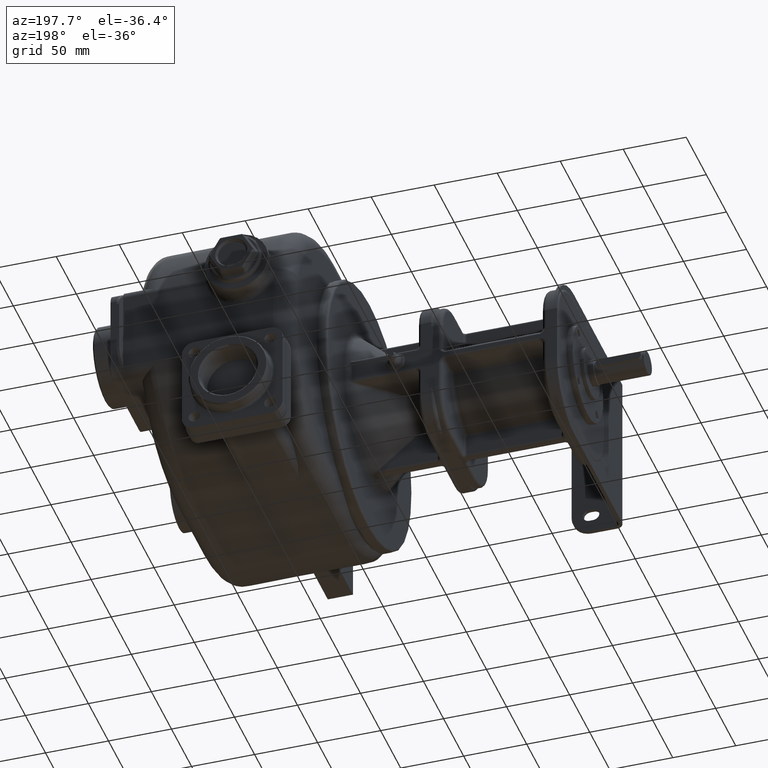
[diagram: clean part render]
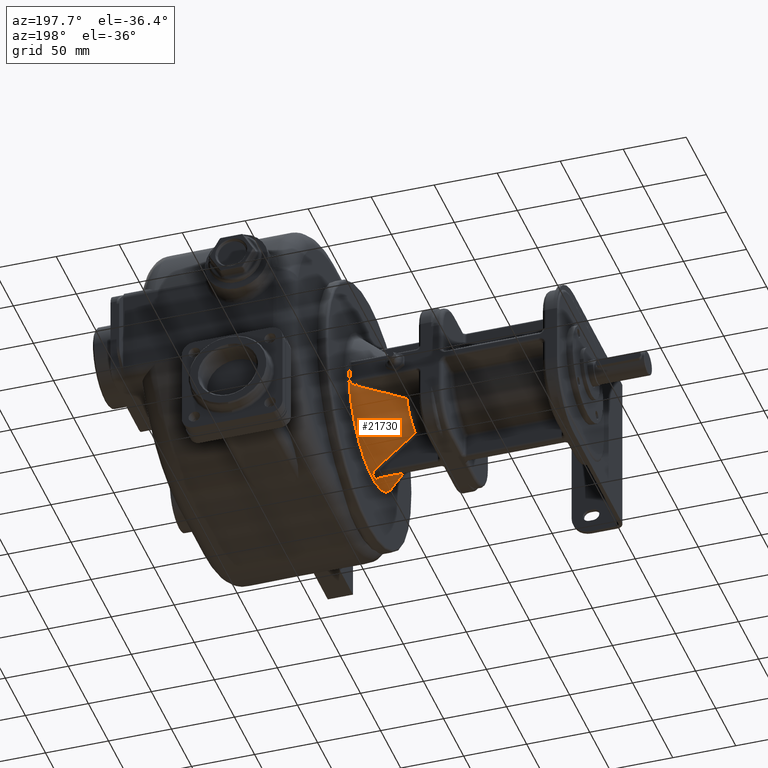
[diagram: same view with one face highlighted and labeled with its STEP entity id]
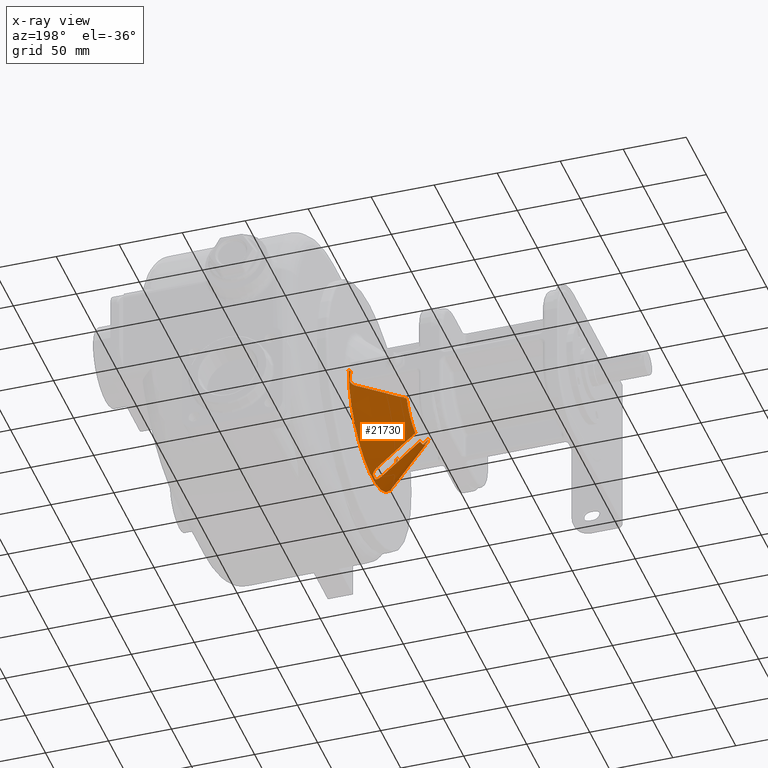
[diagram: x-ray of the same camera — body ghosted, the highlighted face saturated]
A machine part, auxiliary view. The second image highlights one B-rep face of the part: STEP entity #21730.
The next image is the same camera in x-ray: the body ghosted, the highlighted face saturated — about 0% of this face is hidden behind the body in this view.
In plain terms, the highlighted conical surface has half-angle 40 deg.
Its self-contained STEP definition (entity closure, byte-faithful):
#5741=CARTESIAN_POINT('',(-6.615670696729E1,1.158367817912E2,
-5.447662997917E1));
#5742=CARTESIAN_POINT('',(-6.605612310619E1,1.158370264456E2,
-5.456148664290E1));
#5743=CARTESIAN_POINT('',(-6.585701124715E1,1.158322652392E2,
-5.473002373282E1));
#5744=CARTESIAN_POINT('',(-6.556381975429E1,1.158098154258E2,
-5.497980846608E1));
#5745=CARTESIAN_POINT('',(-6.527803850946E1,1.157726253228E2,
-5.522484192205E1));
#5746=CARTESIAN_POINT('',(-6.500080882255E1,1.157213950059E2,
-5.546404158624E1));
#5747=CARTESIAN_POINT('',(-6.473338986616E1,1.156569711101E2,
-5.569620569551E1));
#5748=CARTESIAN_POINT('',(-6.447689470481E1,1.155803261117E2,
-5.592024124198E1));
#5749=CARTESIAN_POINT('',(-6.423244775126E1,1.154926048270E2,
-5.613502974494E1));
#5750=CARTESIAN_POINT('',(-6.400073574414E1,1.153950198870E2,
-5.633981973459E1));
#5751=CARTESIAN_POINT('',(-6.378199153807E1,1.152886217823E2,
-5.653426392374E1));
#5752=CARTESIAN_POINT('',(-6.357644181242E1,1.151745682865E2,
-5.671801667621E1));
#5753=CARTESIAN_POINT('',(-6.338415665266E1,1.150539673080E2,
-5.689087742255E1));
#5754=CARTESIAN_POINT('',(-6.320496180225E1,1.149277957286E2,
-5.705287158663E1));
#5755=CARTESIAN_POINT('',(-6.303860417698E1,1.147970379495E2,
-5.720409854031E1));
#5756=CARTESIAN_POINT('',(-6.288481769299E1,1.146625666571E2,
-5.734468659492E1));
#5757=CARTESIAN_POINT('',(-6.274312125748E1,1.145251309315E2,
-5.747496267815E1));
#5758=CARTESIAN_POINT('',(-6.261296785288E1,1.143854387567E2,
-5.759531930593E1));
#5759=CARTESIAN_POINT('',(-6.249395951003E1,1.142439145622E2,
-5.770605084915E1));
#5760=CARTESIAN_POINT('',(-6.238543461075E1,1.141011153709E2,
-5.780766769117E1));
#5761=CARTESIAN_POINT('',(-6.228684156594E1,1.139574191331E2,
-5.790060522243E1));
#5762=CARTESIAN_POINT('',(-6.219774071138E1,1.138129703317E2,
-5.798522310326E1));
#5763=CARTESIAN_POINT('',(-6.211761147108E1,1.136680301579E2,
-5.806194234084E1));
#5764=CARTESIAN_POINT('',(-6.204601341234E1,1.135229757161E2,
-5.813111181103E1));
#5765=CARTESIAN_POINT('',(-6.198263569938E1,1.133780619307E2,
-5.819298199003E1));
#5766=CARTESIAN_POINT('',(-6.192710703489E1,1.132334143806E2,
-5.824786351725E1));
#5767=CARTESIAN_POINT('',(-6.187901950582E1,1.130890061307E2,
-5.829610647714E1));
#5768=CARTESIAN_POINT('',(-6.183798204440E1,1.129449156429E2,
-5.833804082990E1));
#5769=CARTESIAN_POINT('',(-6.180370606653E1,1.128009619132E2,
-5.837392328289E1));
#5770=CARTESIAN_POINT('',(-6.177611047493E1,1.126571769068E2,
-5.840382383382E1));
#5771=CARTESIAN_POINT('',(-6.175490828477E1,1.125139607974E2,
-5.842797029870E1));
#5772=CARTESIAN_POINT('',(-6.173990186828E1,1.123712992557E2,
-5.844653527245E1));
#5773=CARTESIAN_POINT('',(-6.173113793999E1,1.122300862114E2,
-5.845945146445E1));
#5774=CARTESIAN_POINT('',(-6.172817100916E1,1.120892003492E2,
-5.846714830416E1));
#5775=CARTESIAN_POINT('',(-6.173008583671E1,1.119953925873E2,
-5.846877585929E1));
#5776=CARTESIAN_POINT('',(-6.173195876375E1,1.119493863746E2,
-5.846873683211E1));
#5778=CARTESIAN_POINT('',(-6.173195876375E1,1.119493863746E2,
-5.846873683211E1));
#5779=CARTESIAN_POINT('',(-6.174526459373E1,1.116227939769E2,
-5.846845471836E1));
#5780=CARTESIAN_POINT('',(-6.176507583786E1,1.109715150685E2,
-5.846807750068E1));
#5781=CARTESIAN_POINT('',(-6.177505184272E1,1.099953135230E2,
-5.846780477850E1));
#5782=CARTESIAN_POINT('',(-6.176469330091E1,1.090172494200E2,
-5.846817028511E1));
#5783=CARTESIAN_POINT('',(-6.174544215823E1,1.083746956523E2,
-5.846825443958E1));
#5784=CARTESIAN_POINT('',(-6.173208803404E1,1.080472712599E2,
-5.846852142150E1));
#5786=CARTESIAN_POINT('',(-6.173208803404E1,1.080472712599E2,
-5.846852142150E1));
#5787=CARTESIAN_POINT('',(-6.173030144432E1,1.080036928738E2,
-5.846856116957E1));
#5788=CARTESIAN_POINT('',(-6.172797551888E1,1.079037564622E2,
-5.846706419832E1));
#5789=CARTESIAN_POINT('',(-6.173137473059E1,1.077661798558E2,
-5.845910740167E1));
#5790=CARTESIAN_POINT('',(-6.174029545778E1,1.076241690937E2,
-5.844602158197E1));
#5791=CARTESIAN_POINT('',(-6.175534313974E1,1.074823696594E2,
-5.842744608405E1));
#5792=CARTESIAN_POINT('',(-6.177666042062E1,1.073396769720E2,
-5.840321836034E1));
#5793=CARTESIAN_POINT('',(-6.180430973061E1,1.071964498138E2,
-5.837329150238E1));
#5794=CARTESIAN_POINT('',(-6.183854790169E1,1.070527929890E2,
-5.833744954494E1));
#5795=CARTESIAN_POINT('',(-6.187966548975E1,1.069088584021E2,
-5.829545039210E1));
#5796=CARTESIAN_POINT('',(-6.192788947477E1,1.067644832499E2,
-5.824708927291E1));
#5797=CARTESIAN_POINT('',(-6.198354334155E1,1.066197446592E2,
-5.819209178902E1));
#5798=CARTESIAN_POINT('',(-6.204700457503E1,1.064748484475E2,
-5.813014665658E1));
#5799=CARTESIAN_POINT('',(-6.211871248766E1,1.063298304895E2,
-5.806088144362E1));
#5800=CARTESIAN_POINT('',(-6.219906300736E1,1.061848419094E2,
-5.798396739199E1));
#5801=CARTESIAN_POINT('',(-6.228841366597E1,1.060401663809E2,
-5.789911820133E1));
#5802=CARTESIAN_POINT('',(-6.238735468668E1,1.058961414277E2,
-5.780585810882E1));
#5803=CARTESIAN_POINT('',(-6.249637328150E1,1.057531021883E2,
-5.770380071066E1));
#5804=CARTESIAN_POINT('',(-6.261578886793E1,1.056114015648E2,
-5.759270479958E1));
#5805=CARTESIAN_POINT('',(-6.274619977158E1,1.054716722176E2,
-5.747211964893E1));
#5806=CARTESIAN_POINT('',(-6.288812596053E1,1.053344274726E2,
-5.734165681291E1));
#5807=CARTESIAN_POINT('',(-6.304195457789E1,1.052001769476E2,
-5.720104347902E1));
#5808=CARTESIAN_POINT('',(-6.320824479445E1,1.050697812207E2,
-5.704989692463E1));
#5809=CARTESIAN_POINT('',(-6.338731371792E1,1.049439353357E2,
-5.688803127878E1));
#5810=CARTESIAN_POINT('',(-6.357955695399E1,1.048236075718E2,
-5.671522530876E1));
#5811=CARTESIAN_POINT('',(-6.378526847452E1,1.047096637539E2,
-5.653134178425E1));
#5812=CARTESIAN_POINT('',(-6.400432012384E1,1.046033618071E2,
-5.633664328465E1));
#5813=CARTESIAN_POINT('',(-6.423633136738E1,1.045058768755E2,
-5.613160678141E1));
#5814=CARTESIAN_POINT('',(-6.448094832409E1,1.044183475527E2,
-5.591669043277E1));
#5815=CARTESIAN_POINT('',(-6.473732485212E1,1.043419784297E2,
-5.569277997667E1));
#5816=CARTESIAN_POINT('',(-6.500433650572E1,1.042778711923E2,
-5.546098990287E1));
#5817=CARTESIAN_POINT('',(-6.528072642692E1,1.042269597536E2,
-5.522253069996E1));
#5818=CARTESIAN_POINT('',(-6.556561603452E1,1.041900546111E2,
-5.497827884620E1));
#5819=CARTESIAN_POINT('',(-6.585633806134E1,1.041677260160E2,
-5.473059122807E1));
#5820=CARTESIAN_POINT('',(-6.605651205135E1,1.041630814751E2,
-5.456116907995E1));
#5821=CARTESIAN_POINT('',(-6.615543589527E1,1.041633225778E2,
-5.447771339393E1));
#5823=CARTESIAN_POINT('',(-6.615543589527E1,1.041633225778E2,
-5.447771339393E1));
#5824=CARTESIAN_POINT('',(-6.813923280728E1,1.041681460189E2,
-5.280410061569E1));
#5825=CARTESIAN_POINT('',(-7.188122854979E1,1.041779530058E2,
-4.964559842974E1));
#5826=CARTESIAN_POINT('',(-7.678128768441E1,1.041934973925E2,
-4.550520505486E1));
#5827=CARTESIAN_POINT('',(-8.112512416198E1,1.042096301463E2,
-4.183039481187E1));
#5828=CARTESIAN_POINT('',(-8.498032134170E1,1.042264045500E2,
-3.856456655995E1));
#5829=CARTESIAN_POINT('',(-8.840800030543E1,1.042437431371E2,
-3.565653001537E1));
#5830=CARTESIAN_POINT('',(-9.141340364532E1,1.042612957125E2,
-3.310254386787E1));
#5831=CARTESIAN_POINT('',(-9.406360960357E1,1.042789939118E2,
-3.084644626834E1));
#5832=CARTESIAN_POINT('',(-9.565928565580E1,1.042911056941E2,
-2.948546894371E1));
#5833=CARTESIAN_POINT('',(-9.640900226259E1,1.042971482881E2,
-2.884539967577E1));
#5835=CARTESIAN_POINT('',(-9.640900132538E1,1.1E2,0.E0));
#5836=DIRECTION('',(-1.E0,0.E0,0.E0));
#5837=DIRECTION('',(0.E0,-1.939499120428E-1,-9.810114329704E-1));
#5838=AXIS2_PLACEMENT_3D('',#5835,#5836,#5837);
#5840=CARTESIAN_POINT('',(-9.640900221948E1,8.289853275299E1,
-1.140570340391E1));
#5841=CARTESIAN_POINT('',(-9.597691198430E1,8.250809652544E1,
-1.141266855945E1));
#5842=CARTESIAN_POINT('',(-9.508715457646E1,8.170625492879E1,
-1.142651135660E1));
#5843=CARTESIAN_POINT('',(-9.368928478381E1,8.045290112737E1,
-1.144677363635E1));
#5844=CARTESIAN_POINT('',(-9.218668916212E1,7.911209240273E1,
-1.146703076809E1));
#5845=CARTESIAN_POINT('',(-9.055249569647E1,7.766057882681E1,
-1.148743819184E1));
#5846=CARTESIAN_POINT('',(-8.875499588705E1,7.607113441317E1,
-1.150816921025E1));
#5847=CARTESIAN_POINT('',(-8.676635406498E1,7.432029805415E1,
-1.152922773018E1));
#5848=CARTESIAN_POINT('',(-8.457395029286E1,7.239812978958E1,
-1.155045724833E1));
#5849=CARTESIAN_POINT('',(-8.213339556306E1,7.026694007083E1,
-1.157195381554E1));
#5850=CARTESIAN_POINT('',(-7.938345727403E1,6.787485345864E1,
-1.159384419058E1));
#5851=CARTESIAN_POINT('',(-7.629983379446E1,6.520246741264E1,
-1.161587072303E1));
#5852=CARTESIAN_POINT('',(-7.289940300576E1,6.226583021780E1,
-1.163751350435E1));
#5853=CARTESIAN_POINT('',(-6.920557278980E1,5.908594204759E1,
-1.165848794772E1));
#5854=CARTESIAN_POINT('',(-6.646005061540E1,5.672928604655E1,
-1.167214723255E1));
#5855=CARTESIAN_POINT('',(-6.502366665255E1,5.549810317094E1,
-1.167890285462E1));
#5857=CARTESIAN_POINT('',(-6.502366665255E1,5.549810317094E1,
-1.167890285462E1));
#5858=CARTESIAN_POINT('',(-6.492584178658E1,5.541425386759E1,
-1.167936327308E1));
#5859=CARTESIAN_POINT('',(-6.473324778506E1,5.524811494175E1,
-1.167525555831E1));
#5860=CARTESIAN_POINT('',(-6.445244495234E1,5.500271189455E1,
-1.165403239580E1));
#5861=CARTESIAN_POINT('',(-6.418140497711E1,5.476280986146E1,
-1.161872916287E1));
#5862=CARTESIAN_POINT('',(-6.392092739156E1,5.452930250466E1,
-1.157007367079E1));
#5863=CARTESIAN_POINT('',(-6.367193531362E1,5.430323210991E1,
-1.150899585868E1));
#5864=CARTESIAN_POINT('',(-6.343519745058E1,5.408551940270E1,
-1.143649098531E1));
#5865=CARTESIAN_POINT('',(-6.321146426162E1,5.387710049411E1,
-1.135373147332E1));
#5866=CARTESIAN_POINT('',(-6.300114326147E1,5.367860777511E1,
-1.126188055032E1));
#5867=CARTESIAN_POINT('',(-6.280404618707E1,5.349011670887E1,
-1.116190681902E1));
#5868=CARTESIAN_POINT('',(-6.261997913238E1,5.331169318109E1,
-1.105479133110E1));
#5869=CARTESIAN_POINT('',(-6.244873574581E1,5.314336119682E1,
-1.094139442034E1));
#5870=CARTESIAN_POINT('',(-6.229005981797E1,5.298512044641E1,
-1.082271211606E1));
#5871=CARTESIAN_POINT('',(-6.214371635466E1,5.283694254061E1,
-1.069954265421E1));
#5872=CARTESIAN_POINT('',(-6.200929945602E1,5.269867189734E1,
-1.057282584213E1));
#5873=CARTESIAN_POINT('',(-6.188639462448E1,5.257007943509E1,
-1.044318744462E1));
#5874=CARTESIAN_POINT('',(-6.177442747373E1,5.245078266579E1,
-1.031118744105E1));
#5875=CARTESIAN_POINT('',(-6.167275491467E1,5.234033182174E1,
-1.017736374203E1));
#5876=CARTESIAN_POINT('',(-6.158096562946E1,5.223842642655E1,
-1.004200245430E1));
#5877=CARTESIAN_POINT('',(-6.149848272721E1,5.214462791386E1,
-9.905417624686E0));
#5878=CARTESIAN_POINT('',(-6.142471467787E1,5.205847077118E1,
-9.767850840943E0));
#5879=CARTESIAN_POINT('',(-6.135925540346E1,5.197961982148E1,
-9.629385448067E0));
#5880=CARTESIAN_POINT('',(-6.130178345080E1,5.190783608632E1,
-9.490252938080E0));
#5881=CARTESIAN_POINT('',(-6.125194976235E1,5.184284973437E1,
-9.350649199812E0));
#5882=CARTESIAN_POINT('',(-6.120940449082E1,5.178440610646E1,
-9.210878524160E0));
#5883=CARTESIAN_POINT('',(-6.117385552784E1,5.173225360128E1,
-9.070966781728E0));
#5884=CARTESIAN_POINT('',(-6.114509044454E1,5.168617162261E1,
-8.930695472258E0));
#5885=CARTESIAN_POINT('',(-6.112273873538E1,5.164583484335E1,
-8.790023709760E0));
#5886=CARTESIAN_POINT('',(-6.110663560242E1,5.161106306763E1,
-8.648703890844E0));
#5887=CARTESIAN_POINT('',(-6.109686501120E1,5.158194670629E1,
-8.506877069097E0));
#5888=CARTESIAN_POINT('',(-6.109316341947E1,5.155830013624E1,
-8.364823884937E0));
#5889=CARTESIAN_POINT('',(-6.109545837679E1,5.154009206002E1,
-8.222791971893E0));
#5890=CARTESIAN_POINT('',(-6.110383039725E1,5.152738910680E1,
-8.080800128468E0));
#5891=CARTESIAN_POINT('',(-6.111787124750E1,5.151994406144E1,
-7.939648570085E0));
#5892=CARTESIAN_POINT('',(-6.113129250592E1,5.151852233714E1,
-7.844594714806E0));
#5893=CARTESIAN_POINT('',(-6.113880922503E1,5.151868184058E1,
-7.798076993112E0));
#5895=CARTESIAN_POINT('',(-6.113880922503E1,5.151868184058E1,
-7.798076993112E0));
#5896=CARTESIAN_POINT('',(-6.119138705911E1,5.151978722215E1,
-7.472602841927E0));
#5897=CARTESIAN_POINT('',(-6.128983446850E1,5.152181799153E1,
-6.822985622391E0));
#5898=CARTESIAN_POINT('',(-6.141878839336E1,5.152455732311E1,
-5.843647451915E0));
#5899=CARTESIAN_POINT('',(-6.152799657101E1,5.152687374091E1,
-4.863974582977E0));
#5900=CARTESIAN_POINT('',(-6.161736081625E1,5.152879196907E1,
-3.884511661063E0));
#5901=CARTESIAN_POINT('',(-6.168665434517E1,5.153026543764E1,
-2.906860223653E0));
#5902=CARTESIAN_POINT('',(-6.173588934002E1,5.153130509157E1,
-1.932432653597E0));
#5903=CARTESIAN_POINT('',(-6.176521649941E1,5.153193658724E1,
-9.624724401063E-1));
#5904=CARTESIAN_POINT('',(-6.177165924784E1,5.153208815364E1,
-3.202498066309E-1));
#5905=CARTESIAN_POINT('',(-6.177166269848E1,5.153208930424E1,
-4.209174529895E-12));
#5907=DIRECTION('',(7.660442050024E-1,-6.427878934627E-1,3.470816919564E-12));
#5908=VECTOR('',#5907,1.473006843776E0);
#5909=CARTESIAN_POINT('',(-6.177166269848E1,5.153208930424E1,
-4.209174529895E-12));
#5910=LINE('',#5909,#5908);
#5911=CARTESIAN_POINT('',(-6.064327434188E1,1.1E2,0.E0));
#5912=DIRECTION('',(-1.E0,0.E0,0.E0));
#5913=DIRECTION('',(0.E0,1.E0,0.E0));
#5914=AXIS2_PLACEMENT_3D('',#5911,#5912,#5913);
#5916=DIRECTION('',(7.660442053993E-1,6.427878929898E-1,-3.426566255286E-12));
#5917=VECTOR('',#5916,1.473006843776E0);
#5918=CARTESIAN_POINT('',(-6.177166269907E1,1.684679106965E2,
4.142164205678E-12));
#5919=LINE('',#5918,#5917);
#5920=CARTESIAN_POINT('',(-6.177166269907E1,1.684679106965E2,
4.142164205678E-12));
#5921=CARTESIAN_POINT('',(-6.177165901094E1,1.684679119267E2,
-3.210908665818E-1));
#5922=CARTESIAN_POINT('',(-6.176518201420E1,1.684680645955E2,
-9.647002712790E-1));
#5923=CARTESIAN_POINT('',(-6.173575714915E1,1.684686979161E2,
-1.935814994530E0));
#5924=CARTESIAN_POINT('',(-6.168642811488E1,1.684697390449E2,
-2.910598179260E0));
#5925=CARTESIAN_POINT('',(-6.161707565470E1,1.684712150388E2,
-3.887942726968E0));
#5926=CARTESIAN_POINT('',(-6.152774901178E1,1.684731288016E2,
-4.866410725332E0));
#5927=CARTESIAN_POINT('',(-6.141858289493E1,1.684754597195E2,
-5.845046696502E0));
#5928=CARTESIAN_POINT('',(-6.129010925835E1,1.684781322113E2,
-6.821449218076E0));
#5929=CARTESIAN_POINT('',(-6.119122295324E1,1.684803120373E2,
-7.472840030387E0));
#5930=CARTESIAN_POINT('',(-6.113896401710E1,1.684814186567E2,
-7.796383522783E0));
#5932=CARTESIAN_POINT('',(-6.113896401710E1,1.684814186567E2,
-7.796383522783E0));
#5933=CARTESIAN_POINT('',(-6.113123014254E1,1.684815877725E2,
-7.844203242543E0));
#5934=CARTESIAN_POINT('',(-6.111830882622E1,1.684801302088E2,
-7.936345934721E0));
#5935=CARTESIAN_POINT('',(-6.110391526144E1,1.684727701017E2,
-8.079142318974E0));
#5936=CARTESIAN_POINT('',(-6.109558343127E1,1.684600089453E2,
-8.221319154681E0));
#5937=CARTESIAN_POINT('',(-6.109309768091E1,1.684418785098E2,
-8.363969336294E0));
#5938=CARTESIAN_POINT('',(-6.109683348235E1,1.684181420872E2,
-8.506452701762E0));
#5939=CARTESIAN_POINT('',(-6.110669310484E1,1.683889029407E2,
-8.648605796980E0));
#5940=CARTESIAN_POINT('',(-6.112269809116E1,1.683541846139E2,
-8.790123681381E0));
#5941=CARTESIAN_POINT('',(-6.114507394244E1,1.683138462914E2,
-8.930668614662E0));
#5942=CARTESIAN_POINT('',(-6.117386072929E1,1.682677897370E2,
-9.070658658053E0));
#5943=CARTESIAN_POINT('',(-6.120924835658E1,1.682158051238E2,
-9.210380630342E0));
#5944=CARTESIAN_POINT('',(-6.125166354734E1,1.681575123393E2,
-9.349908572525E0));
#5945=CARTESIAN_POINT('',(-6.130143675538E1,1.680926178281E2,
-9.489277986204E0));
#5946=CARTESIAN_POINT('',(-6.135887141620E1,1.680208673693E2,
-9.628418410688E0));
#5947=CARTESIAN_POINT('',(-6.142429825003E1,1.679420149991E2,
-9.767072582641E0));
#5948=CARTESIAN_POINT('',(-6.149813408952E1,1.678557517042E2,
-9.904935611320E0));
#5949=CARTESIAN_POINT('',(-6.158087672677E1,1.677616793245E2,
-1.004183148477E1));
#5950=CARTESIAN_POINT('',(-6.167290542718E1,1.676595181717E2,
-1.017748847655E1));
#5951=CARTESIAN_POINT('',(-6.177458800881E1,1.675490242056E2,
-1.031150181413E1));
#5952=CARTESIAN_POINT('',(-6.188659055943E1,1.674297115607E2,
-1.044341701588E1));
#5953=CARTESIAN_POINT('',(-6.200940200870E1,1.673012328717E2,
-1.057286669973E1));
#5954=CARTESIAN_POINT('',(-6.214347634320E1,1.671632935069E2,
-1.069937442031E1));
#5955=CARTESIAN_POINT('',(-6.228944636998E1,1.670155052653E2,
-1.082217428118E1));
#5956=CARTESIAN_POINT('',(-6.244770715162E1,1.668576522409E2,
-1.094069464191E1));
#5957=CARTESIAN_POINT('',(-6.261879857834E1,1.666894636956E2,
-1.105403478640E1));
#5958=CARTESIAN_POINT('',(-6.280306882378E1,1.665108183352E2,
-1.116140661489E1));
#5959=CARTESIAN_POINT('',(-6.300065755552E1,1.663218539411E2,
-1.126165150382E1));
#5960=CARTESIAN_POINT('',(-6.321152735236E1,1.661228367967E2,
-1.135377561024E1));
#5961=CARTESIAN_POINT('',(-6.343568516769E1,1.659140282851E2,
-1.143666047318E1));
#5962=CARTESIAN_POINT('',(-6.367256038645E1,1.656961968185E2,
-1.150916752446E1));
#5963=CARTESIAN_POINT('',(-6.392144519483E1,1.654702319424E2,
-1.157017727266E1));
#5964=CARTESIAN_POINT('',(-6.418140546025E1,1.652371891564E2,
-1.161873154932E1));
#5965=CARTESIAN_POINT('',(-6.445210959320E1,1.649975931290E2,
-1.165394950484E1));
#5966=CARTESIAN_POINT('',(-6.473060929897E1,1.647541651867E2,
-1.167517891305E1));
#5967=CARTESIAN_POINT('',(-6.492580230441E1,1.645857959081E2,
-1.167928895687E1));
#5968=CARTESIAN_POINT('',(-6.502184044647E1,1.645034776924E2,
-1.167883752992E1));
#5970=CARTESIAN_POINT('',(-6.502184044647E1,1.645034776924E2,
-1.167883752992E1));
#5971=CARTESIAN_POINT('',(-6.645150581960E1,1.632780559955E2,
-1.167211471143E1));
#5972=CARTESIAN_POINT('',(-6.917691963089E1,1.609386537029E2,
-1.165866794902E1));
#5973=CARTESIAN_POINT('',(-7.284323887303E1,1.577825636222E2,
-1.163783348291E1));
#5974=CARTESIAN_POINT('',(-7.621714418262E1,1.548690438055E2,
-1.161642552269E1));
#5975=CARTESIAN_POINT('',(-7.930766636340E1,1.521909616217E2,
-1.159441840422E1));
#5976=CARTESIAN_POINT('',(-8.208049433440E1,1.497791808023E2,
-1.157240093512E1));
#5977=CARTESIAN_POINT('',(-8.453633882775E1,1.476347901333E2,
-1.155080762535E1));
#5978=CARTESIAN_POINT('',(-8.674220150229E1,1.457009331750E2,
-1.152947572060E1));
#5979=CARTESIAN_POINT('',(-8.874002682717E1,1.439420793825E2,
-1.150833580498E1));
#5980=CARTESIAN_POINT('',(-9.054136593297E1,1.423492862661E2,
-1.148757302506E1));
#5981=CARTESIAN_POINT('',(-9.217748681242E1,1.408961007061E2,
-1.146715131751E1));
#5982=CARTESIAN_POINT('',(-9.368138071912E1,1.395541712092E2,
-1.144688083230E1));
#5983=CARTESIAN_POINT('',(-9.508145398350E1,1.382988745273E2,
-1.142659710504E1));
#5984=CARTESIAN_POINT('',(-9.597475371405E1,1.374938537707E2,
-1.141270337289E1));
#5985=CARTESIAN_POINT('',(-9.640900221992E1,1.371014672475E2,
-1.140570340412E1));
#5987=CARTESIAN_POINT('',(-9.640900132538E1,1.1E2,0.E0));
#5988=DIRECTION('',(-1.E0,0.E0,0.E0));
#5989=DIRECTION('',(0.E0,9.217015387176E-1,-3.878998240856E-1));
#5990=AXIS2_PLACEMENT_3D('',#5987,#5988,#5989);
#5992=CARTESIAN_POINT('',(-9.640900226245E1,1.157028517119E2,
-2.884539967560E1));
#5993=CARTESIAN_POINT('',(-9.566098730491E1,1.157088805865E2,
-2.948401612871E1));
#5994=CARTESIAN_POINT('',(-9.406773095503E1,1.157209765712E2,
-3.084293313875E1));
#5995=CARTESIAN_POINT('',(-9.141880349070E1,1.157386708380E2,
-3.309795212230E1));
#5996=CARTESIAN_POINT('',(-8.841046687219E1,1.157562440276E2,
-3.565443688980E1));
#5997=CARTESIAN_POINT('',(-8.498125256329E1,1.157735927944E2,
-3.856377832828E1));
#5998=CARTESIAN_POINT('',(-8.112181856575E1,1.157903801189E2,
-4.183319441070E1));
#5999=CARTESIAN_POINT('',(-7.677588631617E1,1.158065353963E2,
-4.550977193679E1));
#6000=CARTESIAN_POINT('',(-7.186867358948E1,1.158220338632E2,
-4.965620669422E1));
#6001=CARTESIAN_POINT('',(-6.813312467060E1,1.158319756776E2,
-5.280924174469E1));
#6002=CARTESIAN_POINT('',(-6.615670696729E1,1.158367817912E2,
-5.447662997917E1));
#6921=CARTESIAN_POINT('',(-6.177166269907E1,1.684679106965E2,
4.142164205678E-12));
#6928=CARTESIAN_POINT('',(-6.177166269848E1,5.153208930424E1,
-4.209174529895E-12));
#7296=CARTESIAN_POINT('',(-9.640900226259E1,1.042971482881E2,
-2.884539967577E1));
#12223=CARTESIAN_POINT('',(-6.064327434188E1,5.058525833808E1,
2.706531545518E-14));
#12224=CARTESIAN_POINT('',(-6.064327434188E1,1.694147416619E2,
-1.978906038180E-14));
#12225=VERTEX_POINT('',#12223);
#12226=VERTEX_POINT('',#12224);
#12371=VERTEX_POINT('',#5840);
#12372=VERTEX_POINT('',#5855);
#12408=VERTEX_POINT('',#7296);
#12410=VERTEX_POINT('',#5823);
#12411=VERTEX_POINT('',#5992);
#12412=VERTEX_POINT('',#6002);
#12440=VERTEX_POINT('',#5970);
#12441=VERTEX_POINT('',#5985);
#12456=CARTESIAN_POINT('',(-6.173194061914E1,1.119489584768E2,
-5.846876175191E1));
#12457=VERTEX_POINT('',#12456);
#12458=CARTESIAN_POINT('',(-6.173195144279E1,1.080510438357E2,
-5.846876439968E1));
#12459=VERTEX_POINT('',#12458);
#12460=CARTESIAN_POINT('',(-6.113885617015E1,5.151864921161E1,
-7.797513789781E0));
#12461=VERTEX_POINT('',#12460);
#12468=CARTESIAN_POINT('',(-6.113886576416E1,1.684813549703E2,
-7.797507677931E0));
#12469=VERTEX_POINT('',#12468);
#12473=VERTEX_POINT('',#6921);
#12474=VERTEX_POINT('',#6928);
#21692=CARTESIAN_POINT('',(-7.852613783363E1,1.1E2,0.E0));
#21693=DIRECTION('',(1.E0,0.E0,0.E0));
#21694=DIRECTION('',(0.E0,-1.E0,0.E0));
#21695=AXIS2_PLACEMENT_3D('',#21692,#21693,#21694);
#21696=CONICAL_SURFACE('',#21695,4.440923750161E1,4.E1);
#21698=ORIENTED_EDGE('',*,*,#21697,.T.);
#21700=ORIENTED_EDGE('',*,*,#21699,.T.);
#21702=ORIENTED_EDGE('',*,*,#21701,.T.);
#21704=ORIENTED_EDGE('',*,*,#21703,.T.);
#21706=ORIENTED_EDGE('',*,*,#21705,.T.);
#21708=ORIENTED_EDGE('',*,*,#21707,.T.);
#21710=ORIENTED_EDGE('',*,*,#21709,.T.);
#21712=ORIENTED_EDGE('',*,*,#21711,.T.);
#21714=ORIENTED_EDGE('',*,*,#21713,.T.);
#21715=ORIENTED_EDGE('',*,*,#21686,.F.);
#21717=ORIENTED_EDGE('',*,*,#21716,.F.);
#21719=ORIENTED_EDGE('',*,*,#21718,.T.);
#21721=ORIENTED_EDGE('',*,*,#21720,.T.);
#21723=ORIENTED_EDGE('',*,*,#21722,.T.);
#21725=ORIENTED_EDGE('',*,*,#21724,.T.);
#21727=ORIENTED_EDGE('',*,*,#21726,.T.);
#21728=EDGE_LOOP('',(#21698,#21700,#21702,#21704,#21706,#21708,#21710,#21712,
#21714,#21715,#21717,#21719,#21721,#21723,#21725,#21727));
#21729=FACE_OUTER_BOUND('',#21728,.F.);
#21730=ADVANCED_FACE('',(#21729),#21696,.T.);
#5777=B_SPLINE_CURVE_WITH_KNOTS('',3,(#5741,#5742,#5743,#5744,#5745,#5746,#5747,
#5748,#5749,#5750,#5751,#5752,#5753,#5754,#5755,#5756,#5757,#5758,#5759,#5760,
#5761,#5762,#5763,#5764,#5765,#5766,#5767,#5768,#5769,#5770,#5771,#5772,#5773,
#5774,#5775,#5776),.UNSPECIFIED.,.F.,.F.,(4,1,1,1,1,1,1,1,1,1,1,1,1,1,1,1,1,1,1,
1,1,1,1,1,1,1,1,1,1,1,1,1,1,4),(0.E0,3.030303030303E-2,6.060606060606E-2,
9.090909090909E-2,1.212121212121E-1,1.515151515152E-1,1.818181818182E-1,
2.121212121212E-1,2.424242424242E-1,2.727272727273E-1,3.030303030303E-1,
3.333333333333E-1,3.636363636364E-1,3.939393939394E-1,4.242424242424E-1,
4.545454545455E-1,4.848484848485E-1,5.151515151515E-1,5.454545454545E-1,
5.757575757576E-1,6.060606060606E-1,6.363636363636E-1,6.666666666667E-1,
6.969696969697E-1,7.272727272727E-1,7.575757575758E-1,7.878787878788E-1,
8.181818181818E-1,8.484848484848E-1,8.787878787879E-1,9.090909090909E-1,
9.393939393939E-1,9.696969696970E-1,1.E0),.UNSPECIFIED.);
#5785=B_SPLINE_CURVE_WITH_KNOTS('',3,(#5778,#5779,#5780,#5781,#5782,#5783,
#5784),.UNSPECIFIED.,.F.,.F.,(4,1,1,1,4),(0.E0,2.5E-1,5.E-1,7.5E-1,1.E0),
.UNSPECIFIED.);
#5822=B_SPLINE_CURVE_WITH_KNOTS('',3,(#5786,#5787,#5788,#5789,#5790,#5791,#5792,
#5793,#5794,#5795,#5796,#5797,#5798,#5799,#5800,#5801,#5802,#5803,#5804,#5805,
#5806,#5807,#5808,#5809,#5810,#5811,#5812,#5813,#5814,#5815,#5816,#5817,#5818,
#5819,#5820,#5821),.UNSPECIFIED.,.F.,.F.,(4,1,1,1,1,1,1,1,1,1,1,1,1,1,1,1,1,1,1,
1,1,1,1,1,1,1,1,1,1,1,1,1,1,4),(0.E0,3.030303030303E-2,6.060606060606E-2,
9.090909090909E-2,1.212121212121E-1,1.515151515152E-1,1.818181818182E-1,
2.121212121212E-1,2.424242424242E-1,2.727272727273E-1,3.030303030303E-1,
3.333333333333E-1,3.636363636364E-1,3.939393939394E-1,4.242424242424E-1,
4.545454545455E-1,4.848484848485E-1,5.151515151515E-1,5.454545454545E-1,
5.757575757576E-1,6.060606060606E-1,6.363636363636E-1,6.666666666667E-1,
6.969696969697E-1,7.272727272727E-1,7.575757575758E-1,7.878787878788E-1,
8.181818181818E-1,8.484848484848E-1,8.787878787879E-1,9.090909090909E-1,
9.393939393939E-1,9.696969696970E-1,1.E0),.UNSPECIFIED.);
#5834=B_SPLINE_CURVE_WITH_KNOTS('',3,(#5823,#5824,#5825,#5826,#5827,#5828,#5829,
#5830,#5831,#5832,#5833),.UNSPECIFIED.,.F.,.F.,(4,1,1,1,1,1,1,1,4),(0.E0,
1.25E-1,2.5E-1,3.75E-1,5.E-1,6.25E-1,7.5E-1,8.75E-1,1.E0),.UNSPECIFIED.);
#5839=CIRCLE('',#5838,2.940373334129E1);
#5856=B_SPLINE_CURVE_WITH_KNOTS('',3,(#5840,#5841,#5842,#5843,#5844,#5845,#5846,
#5847,#5848,#5849,#5850,#5851,#5852,#5853,#5854,#5855),.UNSPECIFIED.,.F.,.F.,(4,
1,1,1,1,1,1,1,1,1,1,1,1,4),(0.E0,7.692307692308E-2,1.538461538462E-1,
2.307692307692E-1,3.076923076923E-1,3.846153846154E-1,4.615384615385E-1,
5.384615384615E-1,6.153846153846E-1,6.923076923077E-1,7.692307692308E-1,
8.461538461538E-1,9.230769230769E-1,1.E0),.UNSPECIFIED.);
#5894=B_SPLINE_CURVE_WITH_KNOTS('',3,(#5857,#5858,#5859,#5860,#5861,#5862,#5863,
#5864,#5865,#5866,#5867,#5868,#5869,#5870,#5871,#5872,#5873,#5874,#5875,#5876,
#5877,#5878,#5879,#5880,#5881,#5882,#5883,#5884,#5885,#5886,#5887,#5888,#5889,
#5890,#5891,#5892,#5893),.UNSPECIFIED.,.F.,.F.,(4,1,1,1,1,1,1,1,1,1,1,1,1,1,1,1,
1,1,1,1,1,1,1,1,1,1,1,1,1,1,1,1,1,1,4),(0.E0,2.941176470588E-2,
5.882352941176E-2,8.823529411765E-2,1.176470588235E-1,1.470588235294E-1,
1.764705882353E-1,2.058823529412E-1,2.352941176471E-1,2.647058823529E-1,
2.941176470588E-1,3.235294117647E-1,3.529411764706E-1,3.823529411765E-1,
4.117647058824E-1,4.411764705882E-1,4.705882352941E-1,5.E-1,5.294117647059E-1,
5.588235294118E-1,5.882352941176E-1,6.176470588235E-1,6.470588235294E-1,
6.764705882353E-1,7.058823529412E-1,7.352941176471E-1,7.647058823529E-1,
7.941176470588E-1,8.235294117647E-1,8.529411764706E-1,8.823529411765E-1,
9.117647058824E-1,9.411764705882E-1,9.705882352941E-1,1.E0),.UNSPECIFIED.);
#5906=B_SPLINE_CURVE_WITH_KNOTS('',3,(#5895,#5896,#5897,#5898,#5899,#5900,#5901,
#5902,#5903,#5904,#5905),.UNSPECIFIED.,.F.,.F.,(4,1,1,1,1,1,1,1,4),(0.E0,
1.25E-1,2.5E-1,3.75E-1,5.E-1,6.25E-1,7.5E-1,8.75E-1,1.E0),.UNSPECIFIED.);
#5915=CIRCLE('',#5914,5.941474166192E1);
#5931=B_SPLINE_CURVE_WITH_KNOTS('',3,(#5920,#5921,#5922,#5923,#5924,#5925,#5926,
#5927,#5928,#5929,#5930),.UNSPECIFIED.,.F.,.F.,(4,1,1,1,1,1,1,1,4),(0.E0,
1.25E-1,2.5E-1,3.75E-1,5.E-1,6.25E-1,7.5E-1,8.75E-1,1.E0),.UNSPECIFIED.);
#5969=B_SPLINE_CURVE_WITH_KNOTS('',3,(#5932,#5933,#5934,#5935,#5936,#5937,#5938,
#5939,#5940,#5941,#5942,#5943,#5944,#5945,#5946,#5947,#5948,#5949,#5950,#5951,
#5952,#5953,#5954,#5955,#5956,#5957,#5958,#5959,#5960,#5961,#5962,#5963,#5964,
#5965,#5966,#5967,#5968),.UNSPECIFIED.,.F.,.F.,(4,1,1,1,1,1,1,1,1,1,1,1,1,1,1,1,
1,1,1,1,1,1,1,1,1,1,1,1,1,1,1,1,1,1,4),(0.E0,2.941176470588E-2,
5.882352941176E-2,8.823529411765E-2,1.176470588235E-1,1.470588235294E-1,
1.764705882353E-1,2.058823529412E-1,2.352941176471E-1,2.647058823529E-1,
2.941176470588E-1,3.235294117647E-1,3.529411764706E-1,3.823529411765E-1,
4.117647058824E-1,4.411764705882E-1,4.705882352941E-1,5.E-1,5.294117647059E-1,
5.588235294118E-1,5.882352941176E-1,6.176470588235E-1,6.470588235294E-1,
6.764705882353E-1,7.058823529412E-1,7.352941176471E-1,7.647058823529E-1,
7.941176470588E-1,8.235294117647E-1,8.529411764706E-1,8.823529411765E-1,
9.117647058824E-1,9.411764705882E-1,9.705882352941E-1,1.E0),.UNSPECIFIED.);
#5986=B_SPLINE_CURVE_WITH_KNOTS('',3,(#5970,#5971,#5972,#5973,#5974,#5975,#5976,
#5977,#5978,#5979,#5980,#5981,#5982,#5983,#5984,#5985),.UNSPECIFIED.,.F.,.F.,(4,
1,1,1,1,1,1,1,1,1,1,1,1,4),(0.E0,7.692307692308E-2,1.538461538462E-1,
2.307692307692E-1,3.076923076923E-1,3.846153846154E-1,4.615384615385E-1,
5.384615384615E-1,6.153846153846E-1,6.923076923077E-1,7.692307692308E-1,
8.461538461538E-1,9.230769230769E-1,1.E0),.UNSPECIFIED.);
#5991=CIRCLE('',#5990,2.940373334129E1);
#6003=B_SPLINE_CURVE_WITH_KNOTS('',3,(#5992,#5993,#5994,#5995,#5996,#5997,#5998,
#5999,#6000,#6001,#6002),.UNSPECIFIED.,.F.,.F.,(4,1,1,1,1,1,1,1,4),(0.E0,
1.25E-1,2.5E-1,3.75E-1,5.E-1,6.25E-1,7.5E-1,8.75E-1,1.E0),.UNSPECIFIED.);
#21686=EDGE_CURVE('',#12226,#12225,#5915,.T.);
#21697=EDGE_CURVE('',#12412,#12457,#5777,.T.);
#21699=EDGE_CURVE('',#12457,#12459,#5785,.T.);
#21701=EDGE_CURVE('',#12459,#12410,#5822,.T.);
#21703=EDGE_CURVE('',#12410,#12408,#5834,.T.);
#21705=EDGE_CURVE('',#12408,#12371,#5839,.T.);
#21707=EDGE_CURVE('',#12371,#12372,#5856,.T.);
#21709=EDGE_CURVE('',#12372,#12461,#5894,.T.);
#21711=EDGE_CURVE('',#12461,#12474,#5906,.T.);
#21713=EDGE_CURVE('',#12474,#12225,#5910,.T.);
#21716=EDGE_CURVE('',#12473,#12226,#5919,.T.);
#21718=EDGE_CURVE('',#12473,#12469,#5931,.T.);
#21720=EDGE_CURVE('',#12469,#12440,#5969,.T.);
#21722=EDGE_CURVE('',#12440,#12441,#5986,.T.);
#21724=EDGE_CURVE('',#12441,#12411,#5991,.T.);
#21726=EDGE_CURVE('',#12411,#12412,#6003,.T.);